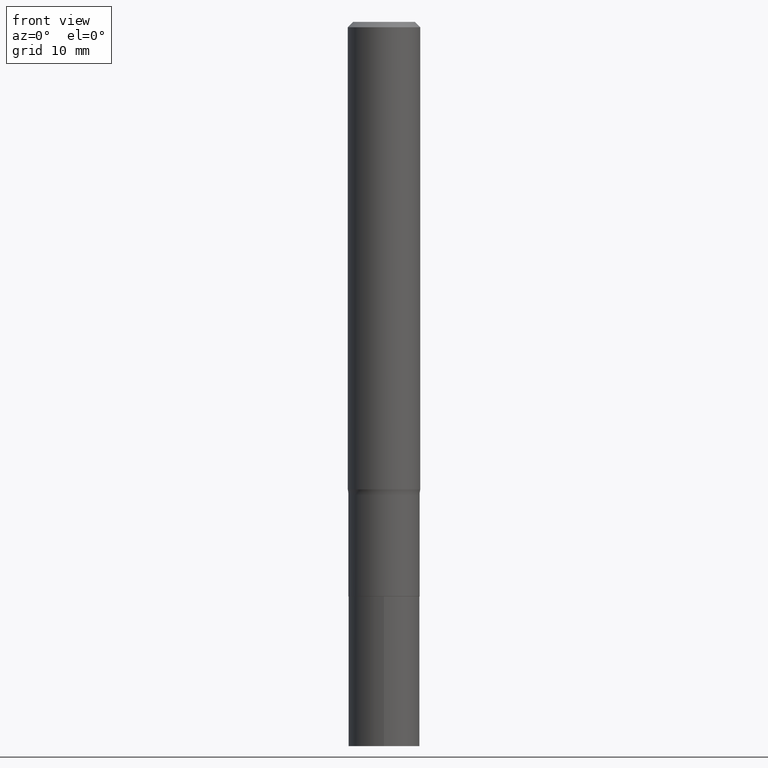
[diagram: clean part render]
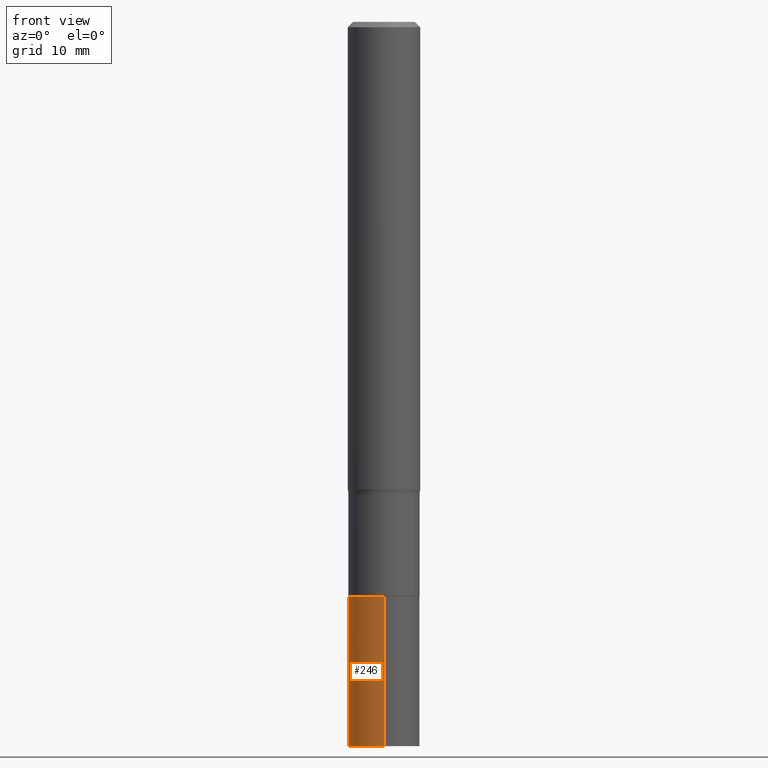
[diagram: same view with one face highlighted and labeled with its STEP entity id]
A machine part, front view. The second image highlights one B-rep face of the part: STEP entity #246.
In plain terms, the highlighted cylindrical surface (edge-blend (fillet) strip) has radius 2.9502 mm, axis along (-0, 0, 1).
Its self-contained STEP definition (entity closure, byte-faithful):
#5 = AXIS2_PLACEMENT_3D ( 'NONE', #256, #399, #326 ) ;
#6 = CARTESIAN_POINT ( 'NONE',  ( -8.110711150132139920E-16, -0.1161500000000065397, -1.874200000000000088 ) ) ;
#17 = CIRCLE ( 'NONE', #358, 0.1161499999999999894 ) ;
#25 = ORIENTED_EDGE ( 'NONE', *, *, #259, .T. ) ;
#32 = CARTESIAN_POINT ( 'NONE',  ( 8.252953875854079607E-16, 0.1161499999999917598, -2.362200000000000966 ) ) ;
#42 = CIRCLE ( 'NONE', #5, 0.1161500000000000032 ) ;
#56 = EDGE_CURVE ( 'NONE', #447, #353, #42, .T. ) ;
#62 = DIRECTION ( 'NONE',  ( -2.477847829518707564E-29, 3.445112734529912251E-15, 1.000000000000000000 ) ) ;
#69 = DIRECTION ( 'NONE',  ( -6.982962677686265922E-15, -1.000000000000000000, 2.351999994545211393E-15 ) ) ;
#93 = ORIENTED_EDGE ( 'NONE', *, *, #188, .F. ) ;
#102 = FACE_OUTER_BOUND ( 'NONE', #145, .T. ) ;
#134 = DIRECTION ( 'NONE',  ( -6.982962677686265922E-15, -1.000000000000000000, 2.351999994545211787E-15 ) ) ;
#145 = EDGE_LOOP ( 'NONE', ( #93, #25, #382, #276 ) ) ;
#156 = LINE ( 'NONE', #6, #456 ) ;
#188 = EDGE_CURVE ( 'NONE', #280, #447, #249, .T. ) ;
#190 = CARTESIAN_POINT ( 'NONE',  ( -8.110711150132139920E-16, -0.1161500000000065397, -1.874200000000000088 ) ) ;
#198 = CARTESIAN_POINT ( 'NONE',  ( 8.252953875854138772E-16, 0.1161499999999934529, -1.874200000000000754 ) ) ;
#239 = VECTOR ( 'NONE', #286, 39.37007874015748143 ) ;
#246 = ADVANCED_FACE ( 'NONE', ( #102 ), #398, .T. ) ;
#249 = LINE ( 'NONE', #466, #239 ) ;
#256 = CARTESIAN_POINT ( 'NONE',  ( 4.583297636552184206E-29, -6.543734325259825090E-15, -1.874200000000000532 ) ) ;
#259 = EDGE_CURVE ( 'NONE', #280, #453, #17, .T. ) ;
#263 = CARTESIAN_POINT ( 'NONE',  ( -8.110711150132018632E-16, -0.1161500000000082189, -2.362200000000000522 ) ) ;
#276 = ORIENTED_EDGE ( 'NONE', *, *, #56, .F. ) ;
#280 = VERTEX_POINT ( 'NONE', #32 ) ;
#286 = DIRECTION ( 'NONE',  ( -2.477847829518707564E-29, 3.445112734529911856E-15, 1.000000000000000000 ) ) ;
#295 = DIRECTION ( 'NONE',  ( -2.477847829518707564E-29, 3.445112734529911856E-15, 1.000000000000000000 ) ) ;
#311 = AXIS2_PLACEMENT_3D ( 'NONE', #432, #62, #69 ) ;
#326 = DIRECTION ( 'NONE',  ( -6.982962677686265922E-15, -1.000000000000000000, 2.351999994545211393E-15 ) ) ;
#353 = VERTEX_POINT ( 'NONE', #190 ) ;
#358 = AXIS2_PLACEMENT_3D ( 'NONE', #400, #392, #134 ) ;
#382 = ORIENTED_EDGE ( 'NONE', *, *, #452, .T. ) ;
#392 = DIRECTION ( 'NONE',  ( -2.477847829518707564E-29, 3.445112734529912251E-15, 1.000000000000000000 ) ) ;
#398 = CYLINDRICAL_SURFACE ( 'NONE', #311, 0.1161500000000000032 ) ;
#399 = DIRECTION ( 'NONE',  ( -2.477847829518707564E-29, 3.445112734529912251E-15, 1.000000000000000000 ) ) ;
#400 = CARTESIAN_POINT ( 'NONE',  ( 5.792487377357314585E-29, -8.224949339710423941E-15, -2.362200000000000966 ) ) ;
#432 = CARTESIAN_POINT ( 'NONE',  ( 4.583297636552184206E-29, -6.543734325259825090E-15, -1.874200000000000532 ) ) ;
#447 = VERTEX_POINT ( 'NONE', #198 ) ;
#452 = EDGE_CURVE ( 'NONE', #453, #353, #156, .T. ) ;
#453 = VERTEX_POINT ( 'NONE', #263 ) ;
#456 = VECTOR ( 'NONE', #295, 39.37007874015748143 ) ;
#466 = CARTESIAN_POINT ( 'NONE',  ( 8.252953875854021429E-16, 0.1161499999999934668, -1.874200000000000754 ) ) ;